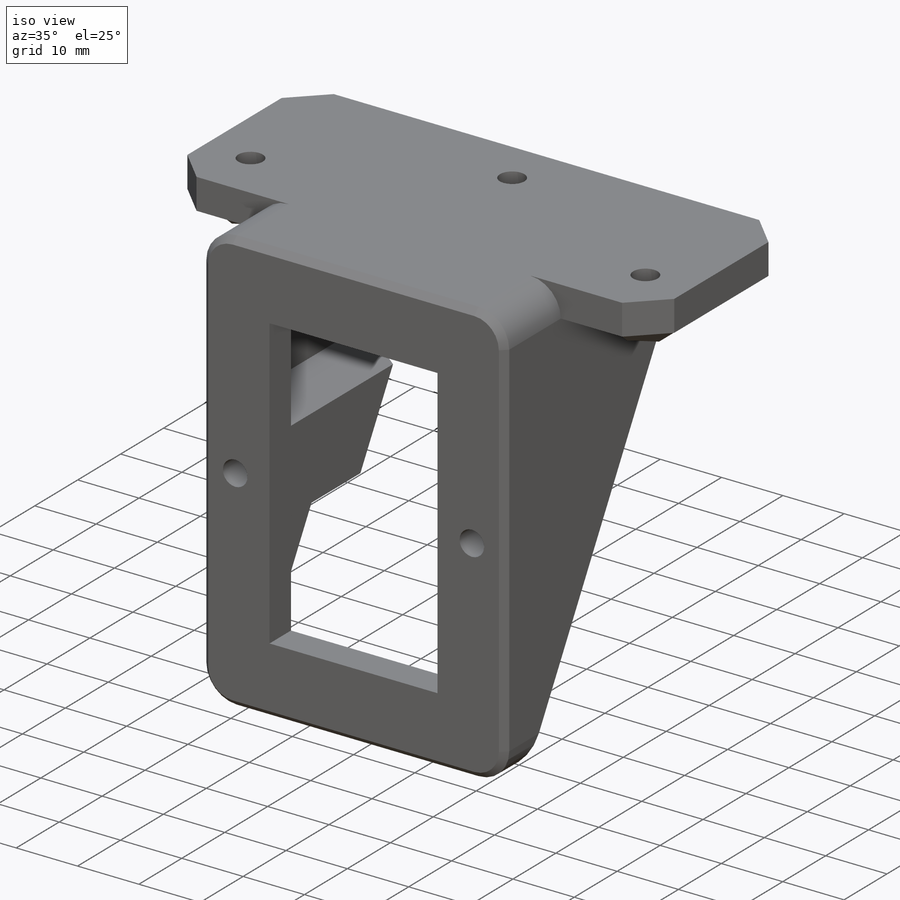
[diagram: iso view]
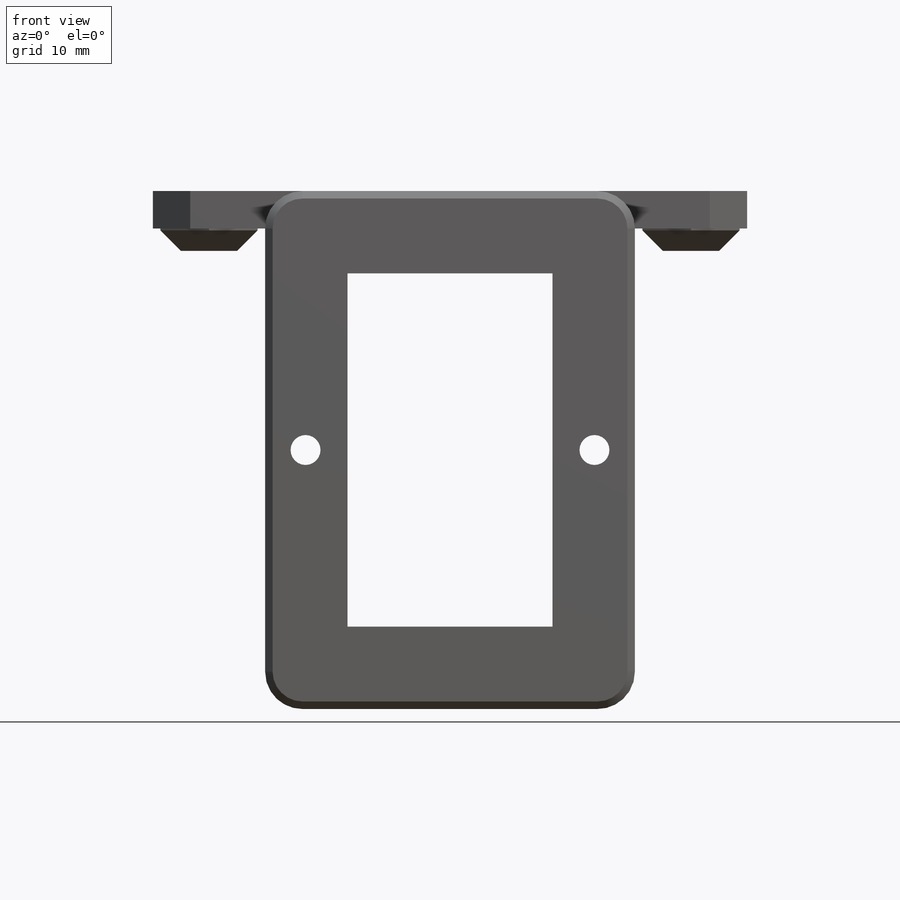
[diagram: front view]
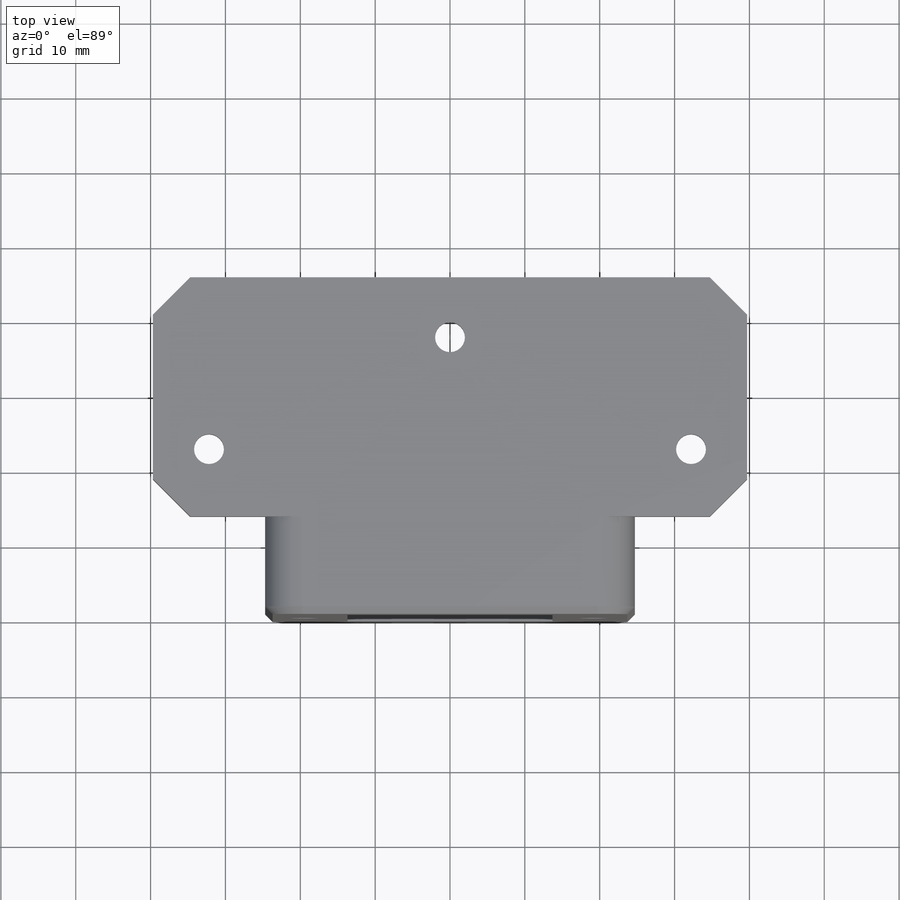
[diagram: top view]
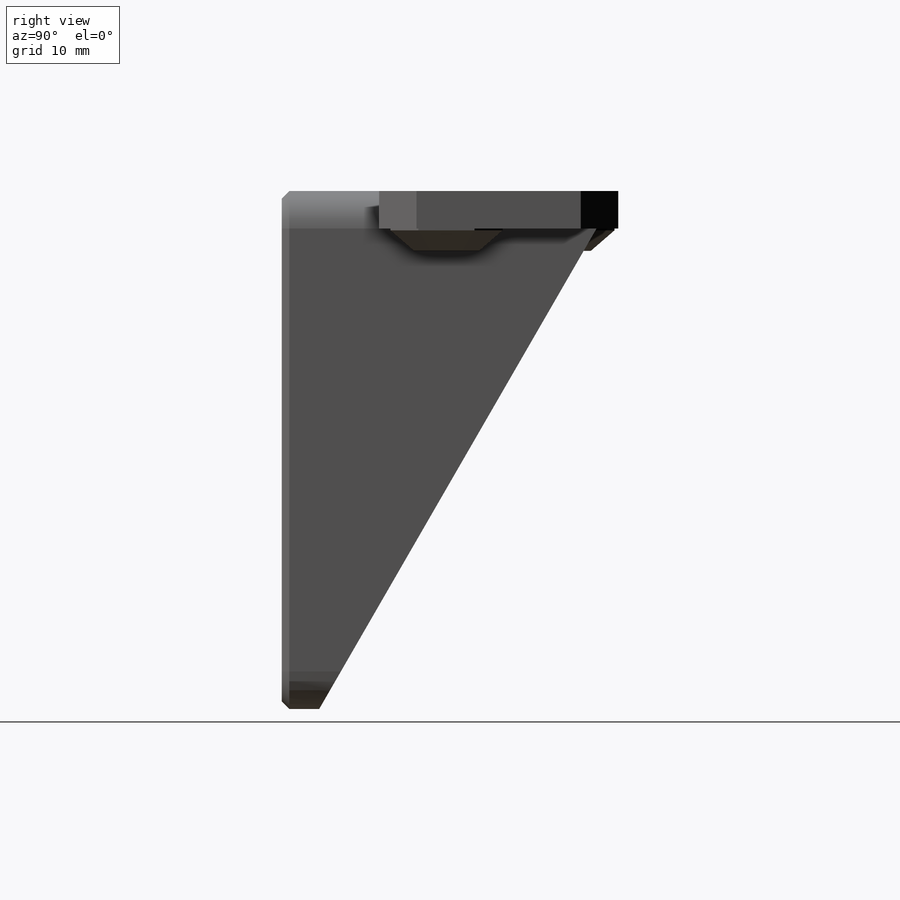
[diagram: right view]
SOLIDWORKS PART (.sldprt)
format: sldprt  version: not decoded by parser v0  size: 565,760 bytes
history: native  units: mm
features: sketch x12, cut_extrude x7, extrude x5, chamfer x4, material x1, fillet x1 (+12 scaffold rows collapsed)
feature tree (42):
  scaffold x12  (default folders/planes/origin — collapsed)
  material  "Material <not specified>"
  sketch  "Sketch1"  dims[D1=46.8mm D2=27.0mm D3=0.2mm D4=11.0mm]
  extrude  "Boss-Extrude1"  Depth=5mm
  sketch  "Sketch2"  dims[D1=4.0mm D2=5.6mm]
  cut_extrude  "Cut-Extrude1"  Depth=15mm
  sketch  "Sketch4"  dims[c1.D1=~44.494627mm c2.D1=30.0deg c2.D2=5.0mm c2.D3=40.0mm]
  extrude  "Boss-Extrude2"  [1 undecoded]
  sketch  "Sketch3"  dims[D1=7.0mm]
  cut_extrude  "Cut-Extrude2"  [1 undecoded]
  sketch  "Sketch5"  dims[D1=0.0mm]
  cut_extrude  "Cut-Extrude3"  Depth=93mm
  sketch  "Sketch6"  dims[D1=0.0mm D2=5.0mm D3=5.0mm D4=5.0mm]
  cut_extrude  "Cut-Extrude4"  Depth=93mm
  sketch  "Sketch7"  dims[D1=15.0mm D2=~44.952639mm]
  extrude  "Boss-Extrude3"  Depth=5mm
  sketch  "Sketch8"  dims[c1.D1=7.0mm c1.D5=7.0mm c1.D3=22.0mm c1.D4=8.0mm c2.D5=3.0mm c2.D2=3.0mm]
  extrude  "Boss-Extrude4"  Depth=3mm
  sketch  "Sketch9"  dims[D1=0.0mm]
  cut_extrude  "Cut-Extrude5"  Depth=1mm
  sketch  "Sketch10"  dims[D1=4.0mm D2=22.0mm]
  cut_extrude  "Cut-Extrude6"  [1 undecoded]
  sketch  "Sketch11"
  cut_extrude  "Cut-Extrude7"  Depth=13mm
  chamfer  "Chamfer1"  Distance=2.75mm Angle=45deg
  sketch  "Sketch12"  dims[D1=0.25mm D2=0.0mm D3=0.25mm D4=0.25mm]
  extrude  "Boss-Extrude5"  Depth=0.5mm
  chamfer  "Chamfer2"  Distance=0.25mm Angle=45deg
  fillet  "Fillet1"  Radius=5mm
  chamfer  "Chamfer3"  Distance=1mm Angle=45deg
  chamfer  "Chamfer4"  Distance=5mm Angle=45deg
decode coverage: 25 of 29 modeling features carry decoded parameters
note: ~ marks probable driven/reference dimensions
note: 3 parameter values undecoded
summary: no parameter record found for 3 features
note: suppression state not decoded; provenance and decode notes live in map.json
